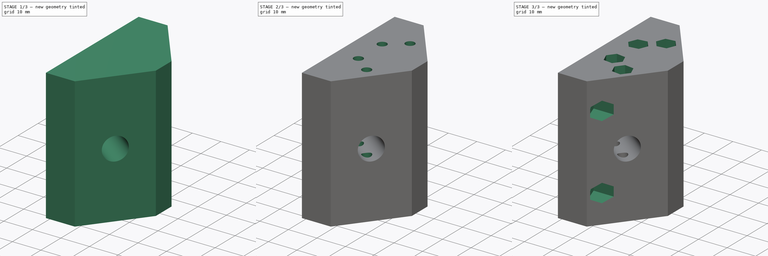
[diagram: build sequence overview — one tinted view per stage of 3, left to right]
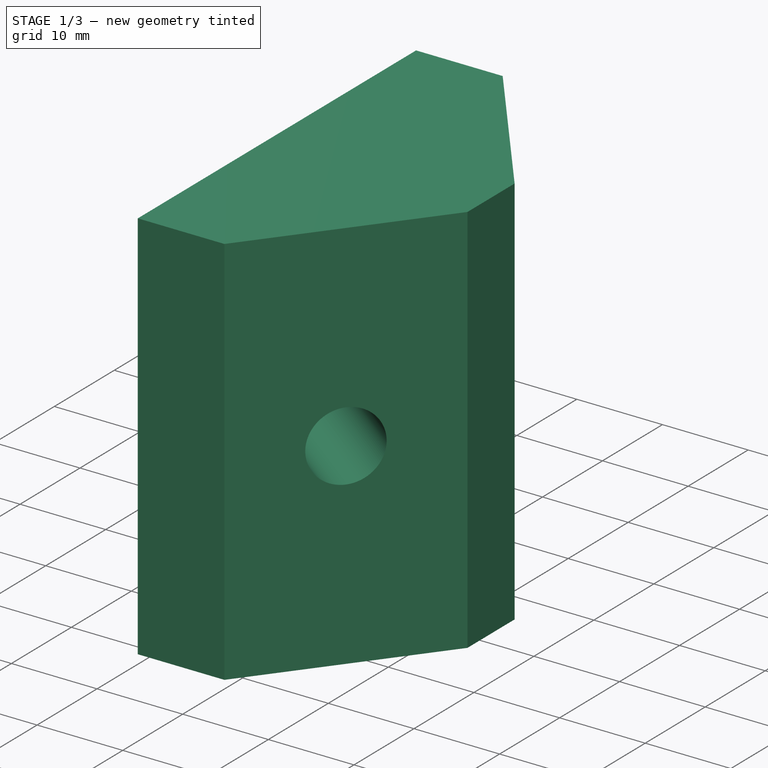
[diagram: stage 1 of 3 — iso view after this stage's code; geometry added in this stage tinted green]
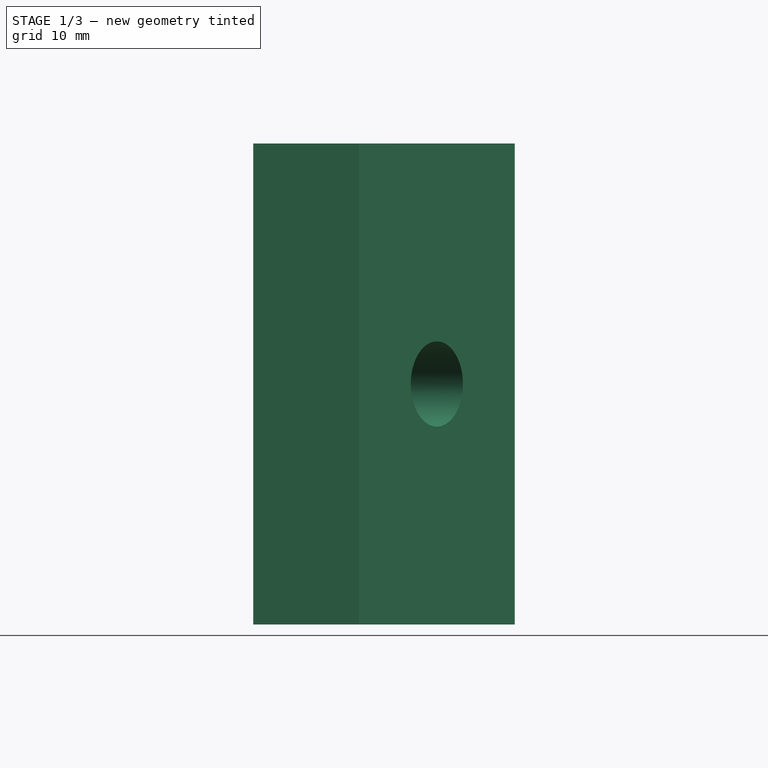
[diagram: stage 1 of 3 — front view after this stage's code; geometry added in this stage tinted green]
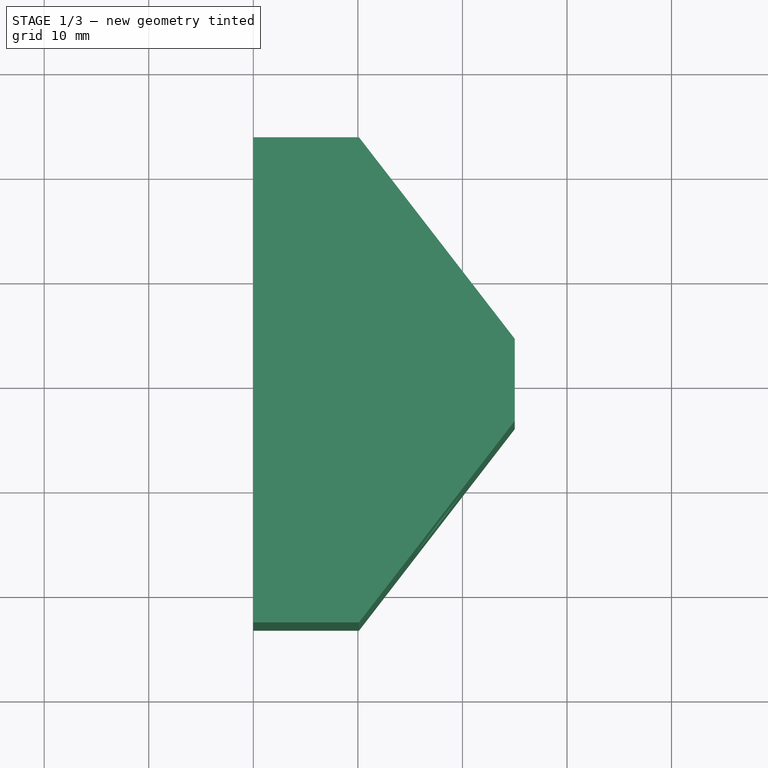
[diagram: stage 1 of 3 — top view after this stage's code; geometry added in this stage tinted green]
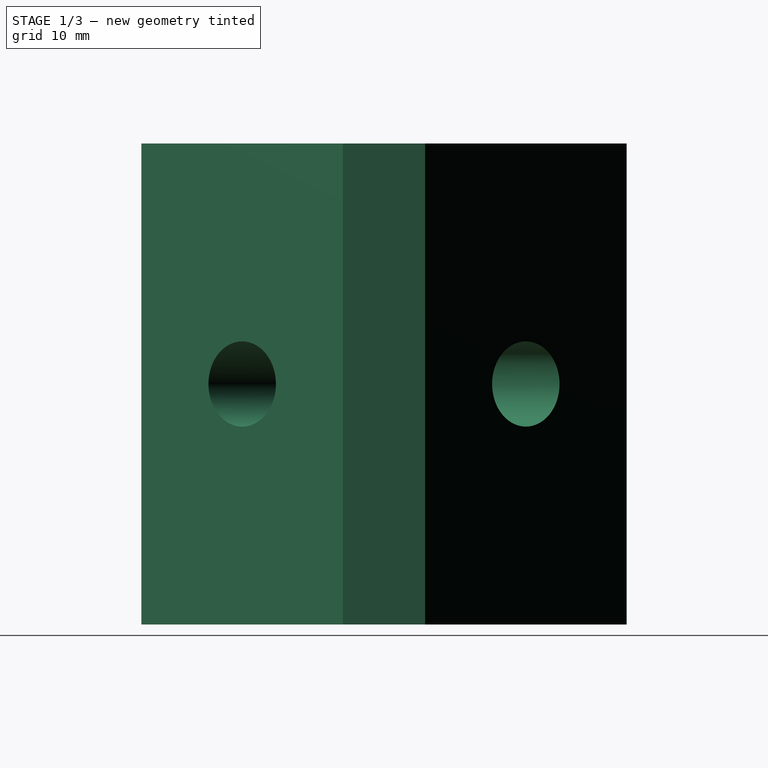
[diagram: stage 1 of 3 — right view after this stage's code; geometry added in this stage tinted green]
FCSTD DOCUMENT  (FreeCAD 0.20R29603 (Git))
Label: haste-M8-ponta-inferior
License: All rights reserved
LicenseURL: http://en.wikipedia.org/wiki/All_rights_reserved
objects: Sketcher::SketchObject×8, PartDesign::Pocket×7, PartDesign::Pad×1, PartDesign::Body×1
note: 25 computed .brp shape members not serialized (recipe doc carries the construction recipe); baked Part::Feature solids carry a one-line shape summary decoded from their .brp

FEATURE [Sketcher::SketchObject] Sketch
  FullyConstrained = true
  MapMode = 5
  Support = -> [XY_Plane]
  sketch-geometry (21):
    g0: LineSegment StartX=0 StartY=100 StartZ=0 EndX=115 EndY=100 EndZ=0
    g1: LineSegment StartX=115 StartY=100 StartZ=0 EndX=130 EndY=100 EndZ=0
    g2: LineSegment StartX=130 StartY=100 StartZ=0 EndX=130 EndY=85 EndZ=0
    g3: LineSegment StartX=-5.2 StartY=16 StartZ=0 EndX=20 EndY=16 EndZ=0
    g4: LineSegment StartX=20 StartY=16 StartZ=0 EndX=20 EndY=-16 EndZ=0
    g5: LineSegment StartX=20 StartY=-16 StartZ=0 EndX=-5.2 EndY=-16 EndZ=0
    g6: LineSegment StartX=-5.2 StartY=-16 StartZ=0 EndX=-5.2 EndY=16 EndZ=0
    g7: LineSegment StartX=20 StartY=16 StartZ=0 EndX=-5.2 EndY=-16 EndZ=0
    g8: LineSegment StartX=-5.2 StartY=16 StartZ=0 EndX=20 EndY=-16 EndZ=0
    g9: GeomPoint X=7.4 Y=0 Z=0
    g10: GeomPoint X=20 Y=100 Z=0
    g11: LineSegment StartX=130 StartY=85 StartZ=0 EndX=20 EndY=0 EndZ=0
    g12: LineSegment StartX=20 StartY=0 StartZ=0 EndX=20 EndY=23.2 EndZ=0
    g13: LineSegment StartX=20 StartY=0 StartZ=0 EndX=20 EndY=-23.2 EndZ=0
    g14: LineSegment StartX=20 StartY=23.2 StartZ=0 EndX=30.1097 EndY=23.2 EndZ=0
    g15: LineSegment StartX=30.1097 StartY=23.2 StartZ=0 EndX=45 EndY=3.93026 EndZ=0
    g16: LineSegment StartX=45 StartY=3.93026 StartZ=0 EndX=45 EndY=-3.93026 EndZ=0
    g17: LineSegment StartX=45 StartY=-3.93026 StartZ=0 EndX=30.1097 EndY=-23.2 EndZ=0
    g18: LineSegment StartX=30.1097 StartY=-23.2 StartZ=0 EndX=20 EndY=-23.2 EndZ=0
    g19: LineSegment StartX=30.1097 StartY=23.2 StartZ=0 EndX=37.5549 EndY=13.5651 EndZ=0
    g20: LineSegment StartX=45 StartY=3.93026 StartZ=0 EndX=37.5549 EndY=13.5651 EndZ=0
  constraints (60):
    c: PointOnObject(g0,g-2)
    c: Horizontal(g0)
    c: DistanceX(g0,g0) = 115
    c: Coincident(g1,g0)
    c: Horizontal(g1)
    c: Coincident(g2,g1)
    c: Vertical(g2)
    c: Equal(g2,g1)
    c: DistanceY(g2,g2) = 15
    c: Coincident(g3,g4)
    c: Coincident(g4,g5)
    c: Coincident(g5,g6)
    c: Coincident(g6,g3)
    c: Horizontal(g3)
    c: Horizontal(g5)
    c: Vertical(g4)
    c: Vertical(g6)
    c: Coincident(g7,g3)
    c: Coincident(g7,g5)
    c: Coincident(g8,g3)
    c: PointOnObject(g9,g7)
    c: PointOnObject(g9,g8)
    c: PointOnObject(g9,g-1)
    c: DistanceY(g6,g6) = 32
    c: DistanceX(g3,g3) = 25.2
    c: Coincident(g8,g4)
    c: DistanceY(g-1,g0) = 100
    c: PointOnObject(g10,g0)
    c: DistanceX(g0,g10) = 20
    c: Vertical(g10,g3)
    c: Coincident(g11,g2)
    c: PointOnObject(g11,g-1)
    c: PointOnObject(g11,g4)
    c: Distance(g11) = 139.014
    c: Angle(g11,g-1) = 2.4837
    c: Horizontal(g14)
    c: Vertical(g16)
    c: Horizontal(g18)
    c: Coincident(g18,g13)
    c: Coincident(g12,g14)
    c: Coincident(g13,g12)
    c: Coincident(g13,g11)
    c: Equal(g12,g13)
    c: Coincident(g14,g15)
    c: Equal(g17,g15)
    c: Equal(g18,g14)
    c: Vertical(g13)
    c: Vertical(g12)
    c: Coincident(g18,g17)
    c: Coincident(g15,g16)
    c: Coincident(g16,g17)
    c: DistanceY(g3,g12) = 7.2
    c: DistanceX(g13,g16) = 25
    c: Angle(g11,g15) = 1.5708
    c: Coincident(g19,g14)
    c: PointOnObject(g19,g11)
    c: Coincident(g20,g15)
    c: Coincident(g20,g19)
    c: Equal(g19,g20)
    c: PointOnObject(g19,g15)
FEATURE [PartDesign::Pad] Pad
  Direction = (0,0,1)
  Length = 46
  Length2 = 10
  Profile = -> Sketch
  ReferenceAxis = -> Sketch [N_Axis]
  Type = 0
FEATURE [Sketcher::SketchObject] Sketch001
  ExternalGeometry = -> [Pad]
  FullyConstrained = true
  MapMode = 5
  Placement = pos=(30.0775,-23.2417,0) rot=(0.821373,0.403327,0.403327;1.76632rad)
  Support = -> [Pad]
  sketch-geometry (3):
    g0: LineSegment StartX=0.0527154 StartY=46 StartZ=0 EndX=24.4052 EndY=0 EndZ=0
    g1: LineSegment StartX=0.0527154 StartY=0 StartZ=0 EndX=24.4052 EndY=46 EndZ=0
    g2: Circle CenterX=12.229 CenterY=23 CenterZ=0 NormalX=0 NormalY=0 NormalZ=1 AngleXU=0 Radius=4.075
  constraints (7):
    c: Coincident(g0,g-4)
    c: Coincident(g0,g-3)
    c: Coincident(g1,g-4)
    c: Coincident(g1,g-3)
    c: Tangent(g2,g0) = -1.5708
    c: PointOnObject(g2,g1)
    c: Diameter(g2) = 8.15
FEATURE [PartDesign::Pocket] Pocket
  BaseFeature = -> Pad
  Direction = (-0.791285,0.611448,0)
  Length = 5
  Length2 = 5
  Profile = -> Sketch001
  ReferenceAxis = -> Sketch001 [N_Axis]
  Type = 1
FEATURE [Sketcher::SketchObject] Sketch002
  ExternalGeometry = -> [Pocket]
  FullyConstrained = true
  MapMode = 5
  Placement = pos=(30.0775,23.2417,0) rot=(0.328008,0.667986,0.667986;2.50769rad)
  Support = -> [Pocket]
  sketch-geometry (3):
    g0: LineSegment StartX=-24.4052 StartY=46 StartZ=0 EndX=-0.0527154 EndY=0 EndZ=0
    g1: LineSegment StartX=-0.0527154 StartY=46 StartZ=0 EndX=-24.4052 EndY=0 EndZ=0
    g2: Circle CenterX=-12.229 CenterY=23 CenterZ=0 NormalX=0 NormalY=0 NormalZ=1 AngleXU=0 Radius=4.075
  constraints (8):
    c: Coincident(g0,g-3)
    c: PointOnObject(g0,g-1)
    c: Coincident(g1,g-4)
    c: Coincident(g1,g-3)
    c: PointOnObject(g0,g-4)
    c: PointOnObject(g2,g1)
    c: PointOnObject(g2,g0)
    c: Diameter(g2) = 8.15
FEATURE [PartDesign::Pocket] Pocket001
  BaseFeature = -> Pocket
  Direction = (-0.791285,-0.611448,-1e-16)
  Length = 0
  Length2 = 5
  Profile = -> Sketch002
  ReferenceAxis = -> Sketch002 [N_Axis]
  Type = 1
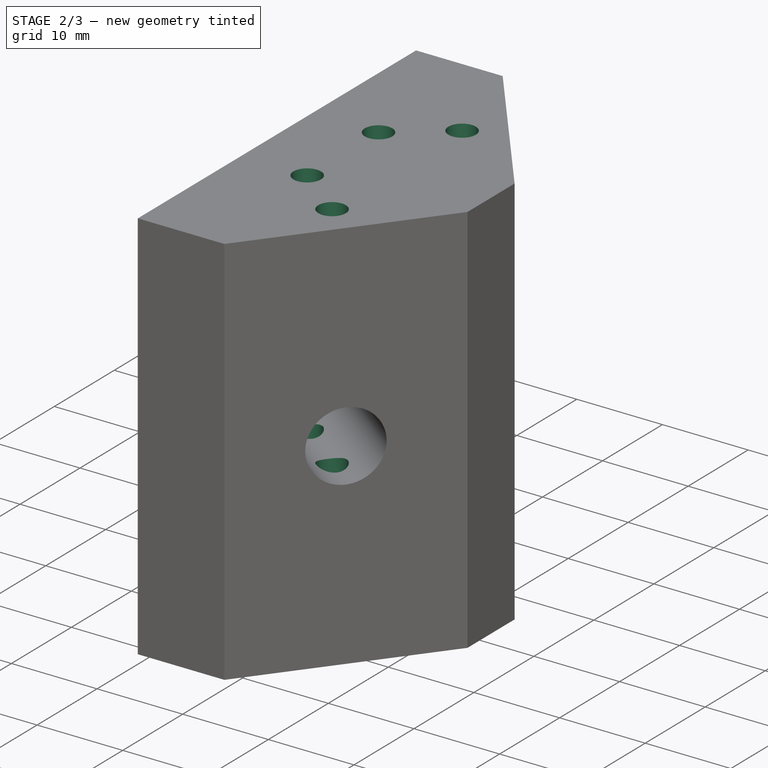
[diagram: stage 2 of 3 — iso view after this stage's code; geometry added in this stage tinted green]
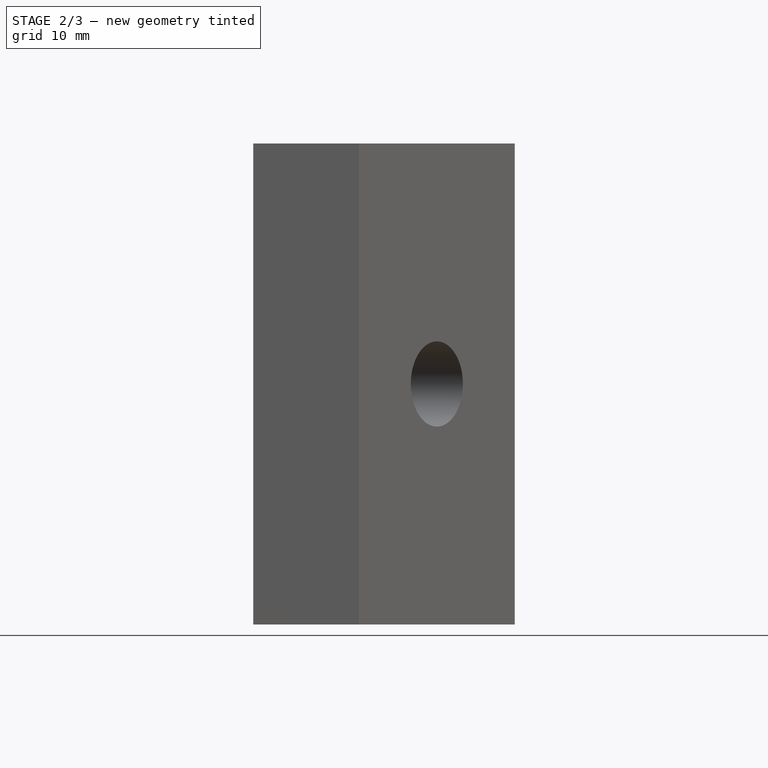
[diagram: stage 2 of 3 — front view after this stage's code; geometry added in this stage tinted green]
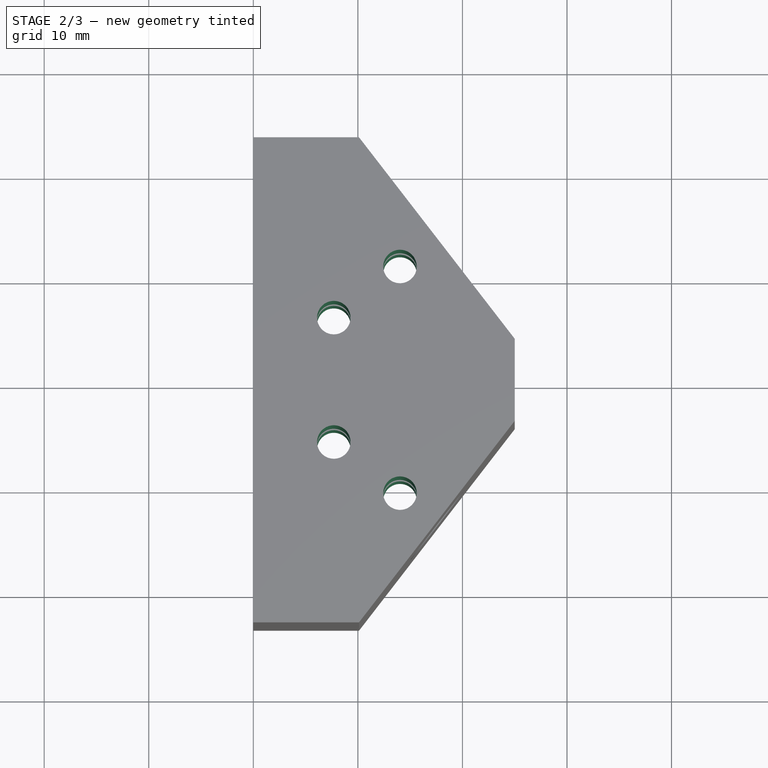
[diagram: stage 2 of 3 — top view after this stage's code; geometry added in this stage tinted green]
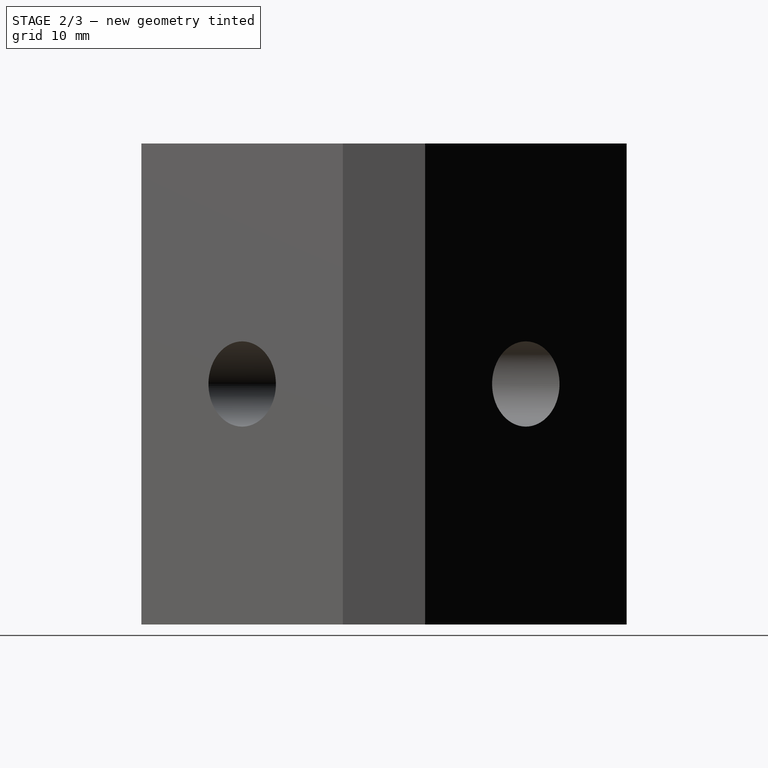
[diagram: stage 2 of 3 — right view after this stage's code; geometry added in this stage tinted green]
FEATURE [Sketcher::SketchObject] Sketch003
  ExternalGeometry = -> [Pocket001]
  FullyConstrained = true
  MapMode = 5
  Placement = pos=(0,0,46) rot=(0,0,1;0rad)
  Support = -> [Pocket001]
  sketch-geometry (20):
    g0: LineSegment StartX=35.0632 StartY=-16.7896 StartZ=0 EndX=20 EndY=-5.14985 EndZ=0
    g1: LineSegment StartX=40.0465 StartY=10.3406 StartZ=0 EndX=26.6645 EndY=-1.8e-15 EndZ=0
    g2: LineSegment StartX=26.6645 StartY=-1.8e-15 StartZ=0 EndX=21.6812 EndY=-6.44897 EndZ=0
    g3: LineSegment StartX=26.6645 StartY=-1.8e-15 StartZ=0 EndX=21.6812 EndY=6.44897 EndZ=0
    g4: LineSegment StartX=21.6812 StartY=6.44897 StartZ=0 EndX=24.1729 EndY=3.22449 EndZ=0
    g5: LineSegment StartX=24.1729 StartY=3.22449 StartZ=0 EndX=26.6645 EndY=-1.8e-15 EndZ=0
    g6: LineSegment StartX=26.6645 StartY=-1.8e-15 StartZ=0 EndX=24.1729 EndY=-3.22449 EndZ=0
    g7: LineSegment StartX=24.1729 StartY=-3.22449 StartZ=0 EndX=21.6812 EndY=-6.44897 EndZ=0
    g8: LineSegment StartX=35.0632 StartY=16.7896 StartZ=0 EndX=37.5549 EndY=13.5651 EndZ=0
    g9: LineSegment StartX=40.0465 StartY=10.3406 StartZ=0 EndX=37.5549 EndY=13.5651 EndZ=0
    g10: LineSegment StartX=40.0465 StartY=-10.3406 StartZ=0 EndX=37.5549 EndY=-13.5651 EndZ=0
    g11: LineSegment StartX=35.0632 StartY=-16.7896 StartZ=0 EndX=37.5549 EndY=-13.5651 EndZ=0
    g12: LineSegment StartX=24.1729 StartY=3.22449 StartZ=0 EndX=37.5549 EndY=13.5651 EndZ=0
    g13: LineSegment StartX=37.5549 StartY=-13.5651 StartZ=0 EndX=24.1729 EndY=-3.22449 EndZ=0
    g14: Circle CenterX=34.029 CenterY=10.8406 CenterZ=0 NormalX=0 NormalY=0 NormalZ=1 AngleXU=0 Radius=1.6
    g15: Circle CenterX=27.6987 CenterY=5.94902 CenterZ=0 NormalX=0 NormalY=0 NormalZ=1 AngleXU=0 Radius=1.6
    g16: Circle CenterX=27.6987 CenterY=-5.94902 CenterZ=0 NormalX=0 NormalY=0 NormalZ=1 AngleXU=0 Radius=1.6
    g17: Circle CenterX=34.029 CenterY=-10.8406 CenterZ=0 NormalX=0 NormalY=0 NormalZ=1 AngleXU=0 Radius=1.6
    g18: LineSegment StartX=24.1729 StartY=3.22449 StartZ=0 EndX=27.6987 EndY=5.94902 EndZ=0
    g19: LineSegment StartX=34.029 StartY=10.8406 StartZ=0 EndX=37.5549 EndY=13.5651 EndZ=0
  constraints (52):
    c: Coincident(g0,g-5)
    c: Coincident(g0,g-8)
    c: Coincident(g1,g-3)
    c: Coincident(g1,g-7)
    c: DistanceY(g-8,g-8) = 10.2997
    c: Distance(g-5) = 8.15
    c: Coincident(g2,g1)
    c: PointOnObject(g2,g0)
    c: Coincident(g3,g1)
    c: PointOnObject(g3,g-4)
    c: Angle(g2,g-6) = 1.5708
    c: Angle(g1,g3) = 1.5708
    c: Coincident(g4,g3)
    c: Coincident(g5,g4)
    c: Coincident(g5,g1)
    c: Coincident(g6,g1)
    c: Coincident(g7,g6)
    c: Coincident(g7,g2)
    c: Coincident(g8,g-4)
    c: Coincident(g9,g1)
    c: Coincident(g9,g8)
    c: Coincident(g10,g-6)
    c: Coincident(g11,g0)
    c: Coincident(g11,g10)
    c: Equal(g10,g11)
    c: Equal(g11,g7)
    c: Equal(g7,g6)
    c: Equal(g6,g5)
    c: Equal(g5,g4)
    c: Equal(g4,g8)
    c: Equal(g8,g9)
    c: PointOnObject(g10,g-5)
    c: Coincident(g12,g4)
    c: Coincident(g12,g8)
    c: Coincident(g13,g10)
    c: Coincident(g13,g6)
    c: PointOnObject(g14,g12)
    c: PointOnObject(g15,g12)
    c: PointOnObject(g16,g13)
    c: PointOnObject(g17,g13)
    c: Equal(g17,g16)
    c: Equal(g16,g15)
    c: Equal(g15,g14)
    c: Vertical(g15,g16)
    c: Vertical(g14,g17)
    c: Radius(g14) = 1.6
    c: Coincident(g18,g4)
    c: Coincident(g19,g14)
    c: Equal(g18,g19)
    c: Coincident(g19,g8)
    c: Coincident(g18,g15)
    c: Distance(g14,g15) = 8
FEATURE [PartDesign::Pocket] Pocket002
  BaseFeature = -> Pocket001
  Direction = (0,0,-1)
  Length = 5
  Length2 = 5
  Profile = -> Sketch003
  ReferenceAxis = -> Sketch003 [N_Axis]
  Type = 1
FEATURE [Sketcher::SketchObject] Sketch004
  ExternalGeometry = -> [Pocket002]
  FullyConstrained = true
  MapMode = 5
  Placement = pos=(0,0,0) rot=(1,0,0;3.14159rad)
  Support = -> [Pocket002]
  sketch-geometry (4):
    g0: Circle CenterX=34.029 CenterY=10.8406 CenterZ=0 NormalX=0 NormalY=0 NormalZ=1 AngleXU=0 Radius=3
    g1: Circle CenterX=27.6987 CenterY=5.94902 CenterZ=0 NormalX=0 NormalY=0 NormalZ=1 AngleXU=0 Radius=3
    g2: Circle CenterX=27.6987 CenterY=-5.94902 CenterZ=0 NormalX=0 NormalY=0 NormalZ=1 AngleXU=0 Radius=3
    g3: Circle CenterX=34.029 CenterY=-10.8406 CenterZ=0 NormalX=0 NormalY=0 NormalZ=1 AngleXU=0 Radius=3
  constraints (8):
    c: Coincident(g0,g-3)
    c: Coincident(g1,g-4)
    c: Coincident(g2,g-5)
    c: Coincident(g3,g-6)
    c: Equal(g3,g2)
    c: Equal(g2,g1)
    c: Equal(g1,g0)
    c: Radius(g3) = 3
FEATURE [PartDesign::Pocket] Pocket003
  BaseFeature = -> Pocket002
  Direction = (0,0,1)
  Length = 4.5
  Length2 = 5
  Profile = -> Sketch004
  ReferenceAxis = -> Sketch004 [N_Axis]
  Type = 0
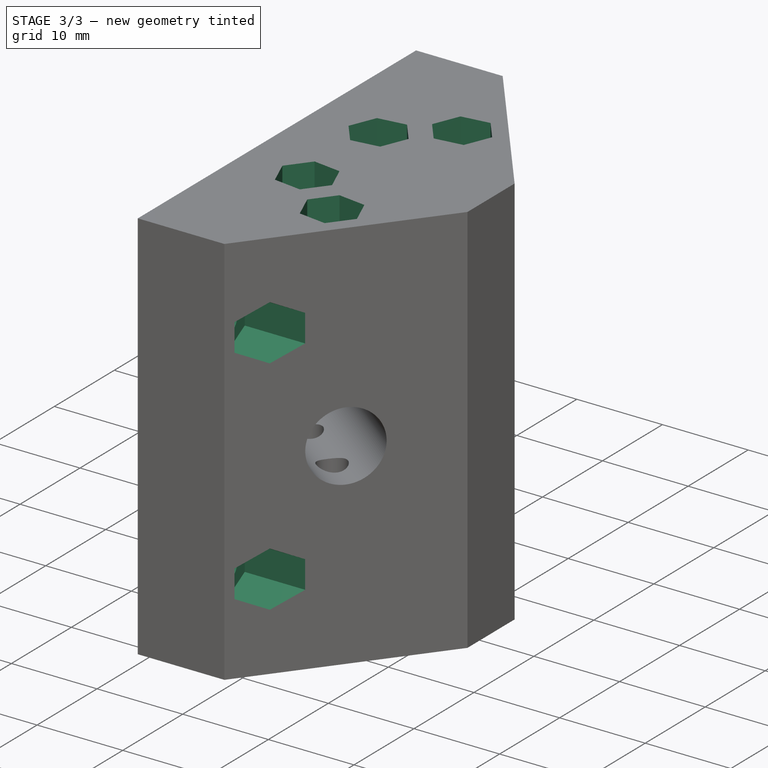
[diagram: stage 3 of 3 — iso view after this stage's code; geometry added in this stage tinted green]
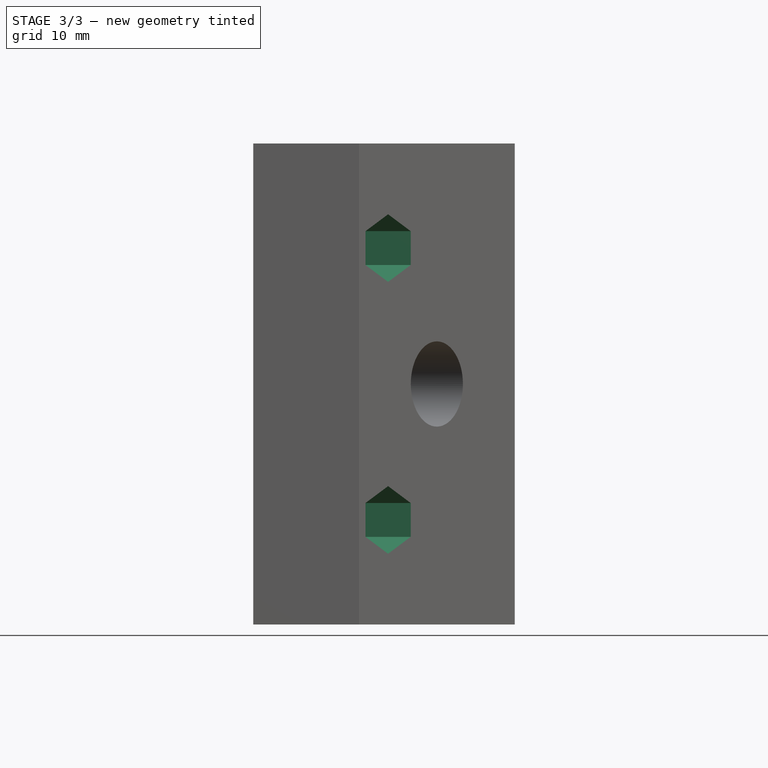
[diagram: stage 3 of 3 — front view after this stage's code; geometry added in this stage tinted green]
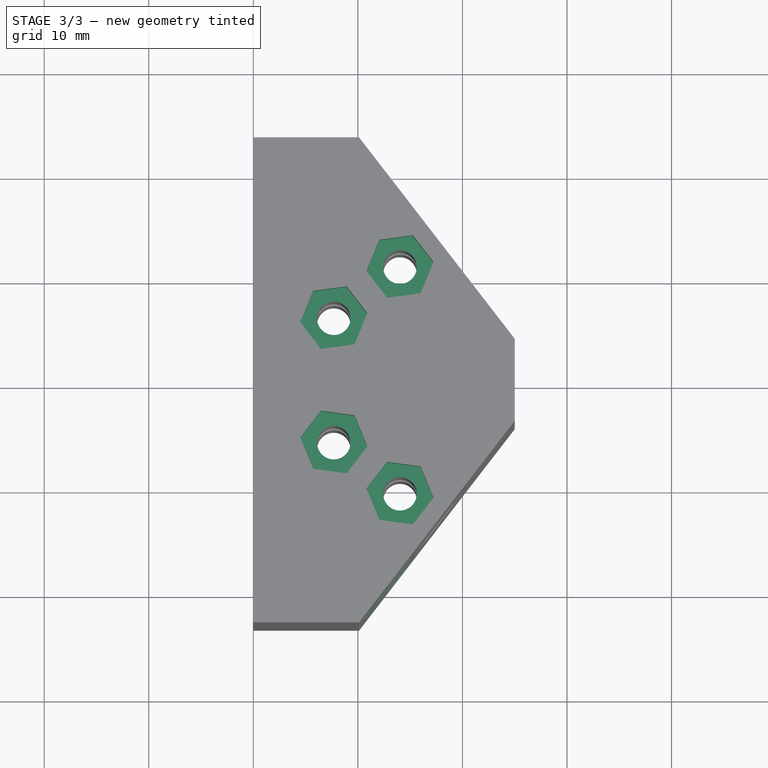
[diagram: stage 3 of 3 — top view after this stage's code; geometry added in this stage tinted green]
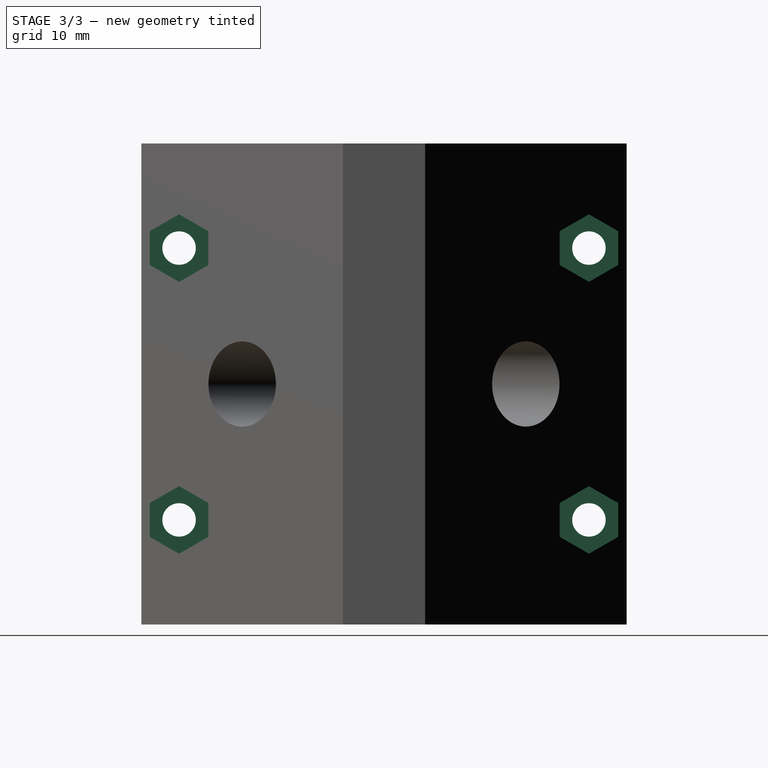
[diagram: stage 3 of 3 — right view after this stage's code; geometry added in this stage tinted green]
FEATURE [Sketcher::SketchObject] Sketch005
  ExternalGeometry = -> [Pocket003]
  FullyConstrained = true
  MapMode = 5
  Placement = pos=(0,0,46) rot=(0,0,1;0rad)
  Support = -> [Pocket003]
  sketch-geometry (28):
    g0: LineSegment StartX=32.8019 StartY=7.84937 StartZ=0 EndX=36.0059 EndY=8.28225 EndZ=0
    g1: LineSegment StartX=36.0059 StartY=8.28225 StartZ=0 EndX=37.2331 EndY=11.2735 EndZ=0
    g2: LineSegment StartX=37.2331 StartY=11.2735 StartZ=0 EndX=35.2562 EndY=13.8318 EndZ=0
    g3: LineSegment StartX=35.2562 StartY=13.8318 StartZ=0 EndX=32.0521 EndY=13.3989 EndZ=0
    g4: LineSegment StartX=32.0521 StartY=13.3989 StartZ=0 EndX=30.825 EndY=10.4077 EndZ=0
    g5: LineSegment StartX=30.825 StartY=10.4077 StartZ=0 EndX=32.8019 EndY=7.84937 EndZ=0
    g6: Circle CenterX=34.029 CenterY=10.8406 CenterZ=0 NormalX=0 NormalY=0 NormalZ=1 AngleXU=0 Radius=3.23316
    g7: LineSegment StartX=26.4716 StartY=2.95779 StartZ=0 EndX=29.6756 EndY=3.39067 EndZ=0
    g8: LineSegment StartX=29.6756 StartY=3.39067 StartZ=0 EndX=30.9028 EndY=6.38189 EndZ=0
    g9: LineSegment StartX=30.9028 StartY=6.38189 StartZ=0 EndX=28.9259 EndY=8.94025 EndZ=0
    g10: LineSegment StartX=28.9259 StartY=8.94025 StartZ=0 EndX=25.7218 EndY=8.50737 EndZ=0
    g11: LineSegment StartX=25.7218 StartY=8.50737 StartZ=0 EndX=24.4947 EndY=5.51614 EndZ=0
    g12: LineSegment StartX=24.4947 StartY=5.51614 StartZ=0 EndX=26.4716 EndY=2.95779 EndZ=0
    g13: Circle CenterX=27.6987 CenterY=5.94902 CenterZ=0 NormalX=0 NormalY=0 NormalZ=1 AngleXU=0 Radius=3.23316
    g14: LineSegment StartX=29.6756 StartY=-3.39067 StartZ=0 EndX=26.4716 EndY=-2.95779 EndZ=0
    g15: LineSegment StartX=26.4716 StartY=-2.95779 StartZ=0 EndX=24.4947 EndY=-5.51614 EndZ=0
    g16: LineSegment StartX=24.4947 StartY=-5.51614 StartZ=0 EndX=25.7218 EndY=-8.50737 EndZ=0
    g17: LineSegment StartX=25.7218 StartY=-8.50737 StartZ=0 EndX=28.9259 EndY=-8.94025 EndZ=0
    g18: LineSegment StartX=28.9259 StartY=-8.94025 StartZ=0 EndX=30.9028 EndY=-6.38189 EndZ=0
    g19: LineSegment StartX=30.9028 StartY=-6.38189 StartZ=0 EndX=29.6756 EndY=-3.39067 EndZ=0
    g20: Circle CenterX=27.6987 CenterY=-5.94902 CenterZ=0 NormalX=0 NormalY=0 NormalZ=1 AngleXU=0 Radius=3.23316
    g21: LineSegment StartX=36.0059 StartY=-8.28225 StartZ=0 EndX=32.8019 EndY=-7.84937 EndZ=0
    g22: LineSegment StartX=32.8019 StartY=-7.84937 StartZ=0 EndX=30.825 EndY=-10.4077 EndZ=0
    g23: LineSegment StartX=30.825 StartY=-10.4077 StartZ=0 EndX=32.0521 EndY=-13.3989 EndZ=0
    g24: LineSegment StartX=32.0521 StartY=-13.3989 StartZ=0 EndX=35.2562 EndY=-13.8318 EndZ=0
    g25: LineSegment StartX=35.2562 StartY=-13.8318 StartZ=0 EndX=37.2331 EndY=-11.2735 EndZ=0
    g26: LineSegment StartX=37.2331 StartY=-11.2735 StartZ=0 EndX=36.0059 EndY=-8.28225 EndZ=0
    g27: Circle CenterX=34.029 CenterY=-10.8406 CenterZ=0 NormalX=0 NormalY=0 NormalZ=1 AngleXU=0 Radius=3.23316
  constraints (64):
    c: Coincident(g0,g1)
    c: Coincident(g1,g2)
    c: Coincident(g2,g3)
    c: Coincident(g3,g4)
    c: Coincident(g4,g5)
    c: Coincident(g5,g0)
    c: Equal(g0, g1-g5) x5
    c: PointOnObject(g0,g6)
    c: PointOnObject(g1,g6)
    c: PointOnObject(g2,g6)
    c: PointOnObject(g3,g6)
    c: PointOnObject(g4,g6)
    c: PointOnObject(g5,g6)
    c: Coincident(g6,g-3)
    c: Coincident(g7,g8)
    c: Coincident(g8,g9)
    c: Coincident(g9,g10)
    c: Coincident(g10,g11)
    c: Coincident(g11,g12)
    c: Coincident(g12,g7)
    c: Equal(g7, g8-g12) x5
    c: PointOnObject(g7,g13)
    c: PointOnObject(g8,g13)
    c: PointOnObject(g9,g13)
    c: PointOnObject(g10,g13)
    c: PointOnObject(g11,g13)
    c: PointOnObject(g12,g13)
    c: Coincident(g13,g-4)
    c: Coincident(g14,g15)
    c: Coincident(g15,g16)
    c: Coincident(g16,g17)
    c: Coincident(g17,g18)
    c: Coincident(g18,g19)
    c: Coincident(g19,g14)
    c: Equal(g14, g15-g19) x5
    c: PointOnObject(g14,g20)
    c: PointOnObject(g15,g20)
    c: PointOnObject(g16,g20)
    c: PointOnObject(g17,g20)
    c: PointOnObject(g18,g20)
    c: PointOnObject(g19,g20)
    c: Coincident(g20,g-5)
    c: Coincident(g21,g22)
    c: Coincident(g22,g23)
    c: Coincident(g23,g24)
    c: Coincident(g24,g25)
    c: Coincident(g25,g26)
    c: Coincident(g26,g21)
    c: Equal(g21, g22-g26) x5
    c: PointOnObject(g21,g27)
    c: PointOnObject(g22,g27)
    c: PointOnObject(g23,g27)
    c: PointOnObject(g24,g27)
    c: PointOnObject(g25,g27)
    c: PointOnObject(g26,g27)
    c: Coincident(g27,g-6)
    c: Parallel(g2,g9)
    c: Parallel(g9,g-7)
    c: Parallel(g18,g22)
    c: Parallel(g22,g-8)
    c: Equal(g20,g27)
    c: Equal(g27,g13)
    c: Equal(g13,g6)
    c: Distance(g9,g11) = 5.6
FEATURE [PartDesign::Pocket] Pocket004
  BaseFeature = -> Pocket003
  Direction = (0,0,-1)
  Length = 3.5
  Length2 = 5
  Profile = -> Sketch005
  ReferenceAxis = -> Sketch005 [N_Axis]
  Type = 0
FEATURE [Sketcher::SketchObject] Sketch006
  ExternalGeometry = -> [Pocket004]
  FullyConstrained = false
  MapMode = 5
  Placement = pos=(20,0,0) rot=(0.57735,-0.57735,-0.57735;2.0944rad)
  Support = -> [Pocket004]
  sketch-geometry (13):
    g0: Circle CenterX=-19.6 CenterY=36 CenterZ=0 NormalX=0 NormalY=0 NormalZ=1 AngleXU=0 Radius=1.6
    g1: Circle CenterX=19.6 CenterY=36 CenterZ=0 NormalX=0 NormalY=0 NormalZ=1 AngleXU=0 Radius=1.6
    g2: Circle CenterX=19.6 CenterY=10 CenterZ=0 NormalX=0 NormalY=0 NormalZ=1 AngleXU=0 Radius=1.6
    g3: Circle CenterX=-19.6 CenterY=10 CenterZ=0 NormalX=0 NormalY=0 NormalZ=1 AngleXU=0 Radius=1.6
    g4: LineSegment StartX=23.2 StartY=46 StartZ=0 EndX=23.2 EndY=38.8 EndZ=0
    g5: LineSegment StartX=19.6 StartY=36 StartZ=0 EndX=-19.6 EndY=10 EndZ=0
    g6: LineSegment StartX=19.6 StartY=10 StartZ=0 EndX=-19.6 EndY=36 EndZ=0
    g7: LineSegment StartX=-23.2 StartY=0 StartZ=0 EndX=-16 EndY=0 EndZ=0
    g8: LineSegment StartX=-16 StartY=0 StartZ=0 EndX=-16 EndY=46 EndZ=0
    g9: LineSegment StartX=-16 StartY=46 StartZ=0 EndX=-23.2 EndY=46 EndZ=0
    g10: LineSegment StartX=-23.2 StartY=46 StartZ=0 EndX=-23.2 EndY=0 EndZ=0
    g11: LineSegment StartX=-23.2 StartY=0 StartZ=0 EndX=-19.6 EndY=0 EndZ=0
    g12: LineSegment StartX=-16 StartY=0 StartZ=0 EndX=-19.6 EndY=0 EndZ=0
  constraints (35):
    c: Vertical(g4)
    c: PointOnObject(g4,g-4)
    c: Radius(g1) = 1.6
    c: Equal(g1,g0)
    c: Equal(g0,g3)
    c: Equal(g3,g2)
    c: Horizontal(g0,g1)
    c: Horizontal(g3,g2)
    c: Vertical(g3,g0)
    c: Vertical(g2,g1)
    c: Coincident(g5,g1)
    c: Coincident(g5,g3)
    c: Coincident(g6,g2)
    c: Coincident(g6,g0)
    c: PointOnObject(g-3,g5)
    c: PointOnObject(g-3,g6)
    c: Coincident(g7,g8)
    c: Coincident(g8,g9)
    c: Coincident(g9,g10)
    c: Coincident(g10,g7)
    c: Horizontal(g7)
    c: Horizontal(g9)
    c: Vertical(g8)
    c: Vertical(g10)
    c: Coincident(g9,g-5)
    c: PointOnObject(g7,g-1)
    c: Coincident(g11,g7)
    c: Coincident(g12,g7)
    c: Coincident(g12,g11)
    c: Equal(g11,g12)
    c: PointOnObject(g11,g7)
    c: Vertical(g3,g11)
    c: DistanceY(g7,g3) = 10
    c: DistanceX(g9,g9) = 7.2
    c: DistanceY(g2,g1) = 26
FEATURE [PartDesign::Pocket] Pocket005
  BaseFeature = -> Pocket004
  Direction = (1,0,0)
  Length = 5
  Length2 = 5
  Profile = -> Sketch006
  ReferenceAxis = -> Sketch006 [N_Axis]
  Type = 1
FEATURE [Sketcher::SketchObject] Sketch008
  ExternalGeometry = -> [Pocket005]
  FullyConstrained = true
  MapMode = 5
  Placement = pos=(45,0,0) rot=(0.57735,0.57735,0.57735;2.0944rad)
  Support = -> [Pocket005]
  sketch-geometry (28):
    g0: LineSegment StartX=-16.8 StartY=34.3834 StartZ=0 EndX=-16.8 EndY=37.6166 EndZ=0
    g1: LineSegment StartX=-16.8 StartY=37.6166 StartZ=0 EndX=-19.6 EndY=39.2332 EndZ=0
    g2: LineSegment StartX=-19.6 StartY=39.2332 StartZ=0 EndX=-22.4 EndY=37.6166 EndZ=0
    g3: LineSegment StartX=-22.4 StartY=37.6166 StartZ=0 EndX=-22.4 EndY=34.3834 EndZ=0
    g4: LineSegment StartX=-22.4 StartY=34.3834 StartZ=0 EndX=-19.6 EndY=32.7668 EndZ=0
    g5: LineSegment StartX=-19.6 StartY=32.7668 StartZ=0 EndX=-16.8 EndY=34.3834 EndZ=0
    g6: Circle CenterX=-19.6 CenterY=36 CenterZ=0 NormalX=0 NormalY=0 NormalZ=1 AngleXU=0 Radius=3.23316
    g7: LineSegment StartX=16.8 StartY=34.3834 StartZ=0 EndX=19.6 EndY=32.7668 EndZ=0
    g8: LineSegment StartX=19.6 StartY=32.7668 StartZ=0 EndX=22.4 EndY=34.3834 EndZ=0
    g9: LineSegment StartX=22.4 StartY=34.3834 StartZ=0 EndX=22.4 EndY=37.6166 EndZ=0
    g10: LineSegment StartX=22.4 StartY=37.6166 StartZ=0 EndX=19.6 EndY=39.2332 EndZ=0
    g11: LineSegment StartX=19.6 StartY=39.2332 StartZ=0 EndX=16.8 EndY=37.6166 EndZ=0
    g12: LineSegment StartX=16.8 StartY=37.6166 StartZ=0 EndX=16.8 EndY=34.3834 EndZ=0
    g13: Circle CenterX=19.6 CenterY=36 CenterZ=0 NormalX=0 NormalY=0 NormalZ=1 AngleXU=0 Radius=3.23316
    g14: LineSegment StartX=-16.8 StartY=11.6166 StartZ=0 EndX=-19.6 EndY=13.2332 EndZ=0
    g15: LineSegment StartX=-19.6 StartY=13.2332 StartZ=0 EndX=-22.4 EndY=11.6166 EndZ=0
    g16: LineSegment StartX=-22.4 StartY=11.6166 StartZ=0 EndX=-22.4 EndY=8.38342 EndZ=0
    g17: LineSegment StartX=-22.4 StartY=8.38342 StartZ=0 EndX=-19.6 EndY=6.76684 EndZ=0
    g18: LineSegment StartX=-19.6 StartY=6.76684 StartZ=0 EndX=-16.8 EndY=8.38342 EndZ=0
    g19: LineSegment StartX=-16.8 StartY=8.38342 StartZ=0 EndX=-16.8 EndY=11.6166 EndZ=0
    g20: Circle CenterX=-19.6 CenterY=10 CenterZ=0 NormalX=0 NormalY=0 NormalZ=1 AngleXU=0 Radius=3.23316
    g21: LineSegment StartX=16.8 StartY=8.38342 StartZ=0 EndX=19.6 EndY=6.76684 EndZ=0
    g22: LineSegment StartX=19.6 StartY=6.76684 StartZ=0 EndX=22.4 EndY=8.38342 EndZ=0
    g23: LineSegment StartX=22.4 StartY=8.38342 StartZ=0 EndX=22.4 EndY=11.6166 EndZ=0
    g24: LineSegment StartX=22.4 StartY=11.6166 StartZ=0 EndX=19.6 EndY=13.2332 EndZ=0
    g25: LineSegment StartX=19.6 StartY=13.2332 StartZ=0 EndX=16.8 EndY=11.6166 EndZ=0
    g26: LineSegment StartX=16.8 StartY=11.6166 StartZ=0 EndX=16.8 EndY=8.38342 EndZ=0
    g27: Circle CenterX=19.6 CenterY=10 CenterZ=0 NormalX=0 NormalY=0 NormalZ=1 AngleXU=0 Radius=3.23316
  constraints (64):
    c: Coincident(g0,g1)
    c: Coincident(g1,g2)
    c: Coincident(g2,g3)
    c: Coincident(g3,g4)
    c: Coincident(g4,g5)
    c: Coincident(g5,g0)
    c: Equal(g0, g1-g5) x5
    c: PointOnObject(g0,g6)
    c: PointOnObject(g1,g6)
    c: PointOnObject(g2,g6)
    c: PointOnObject(g3,g6)
    c: PointOnObject(g4,g6)
    c: PointOnObject(g5,g6)
    c: Coincident(g6,g-4)
    c: Coincident(g7,g8)
    c: Coincident(g8,g9)
    c: Coincident(g9,g10)
    c: Coincident(g10,g11)
    c: Coincident(g11,g12)
    c: Coincident(g12,g7)
    c: Equal(g7, g8-g12) x5
    c: PointOnObject(g7,g13)
    c: PointOnObject(g8,g13)
    c: PointOnObject(g9,g13)
    c: PointOnObject(g10,g13)
    c: PointOnObject(g11,g13)
    c: PointOnObject(g12,g13)
    c: Coincident(g13,g-5)
    c: Coincident(g14,g15)
    c: Coincident(g15,g16)
    c: Coincident(g16,g17)
    c: Coincident(g17,g18)
    c: Coincident(g18,g19)
    c: Coincident(g19,g14)
    c: Equal(g14, g15-g19) x5
    c: PointOnObject(g14,g20)
    c: PointOnObject(g15,g20)
    c: PointOnObject(g16,g20)
    c: PointOnObject(g17,g20)
    c: PointOnObject(g18,g20)
    c: PointOnObject(g19,g20)
    c: Coincident(g20,g-3)
    c: Coincident(g21,g22)
    c: Coincident(g22,g23)
    c: Coincident(g23,g24)
    c: Coincident(g24,g25)
    c: Coincident(g25,g26)
    c: Coincident(g26,g21)
    c: Equal(g21, g22-g26) x5
    c: PointOnObject(g21,g27)
    c: PointOnObject(g22,g27)
    c: PointOnObject(g23,g27)
    c: PointOnObject(g24,g27)
    c: PointOnObject(g25,g27)
    c: PointOnObject(g26,g27)
    c: Coincident(g27,g-6)
    c: Equal(g27,g20)
    c: Equal(g20,g6)
    c: Equal(g6,g13)
    c: Vertical(g3)
    c: Vertical(g12)
    c: Vertical(g16)
    c: Vertical(g26)
    c: DistanceX(g15,g14) = 5.6
FEATURE [PartDesign::Pocket] Pocket006
  BaseFeature = -> Pocket005
  Direction = (-1,0,0)
  Length = 17
  Length2 = 5
  Profile = -> Sketch008
  ReferenceAxis = -> Sketch008 [N_Axis]
  Type = 0
FEATURE [PartDesign::Body] Body
  Group = -> [Sketch,Pad,Sketch001,Pocket,Sketch002,Pocket001,Sketch003,Pocket002,Sketch004,Pocket003,Sketch005,Pocket004,Sketch006,Pocket005,Sketch008,Pocket006]
  Origin = -> Origin
  Tip = -> Pocket006
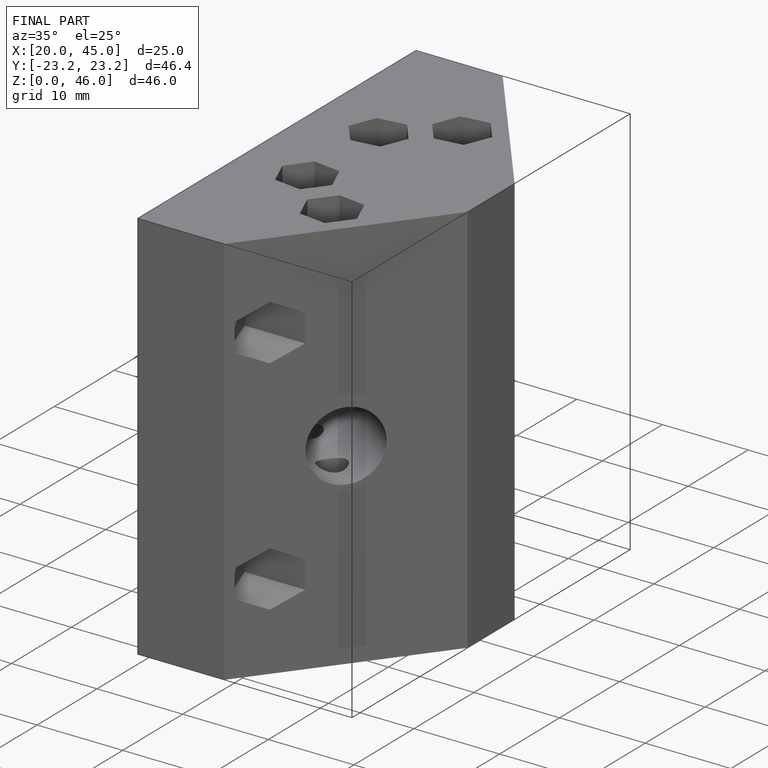
[diagram: finished part — iso view with bounding-box wireframe]
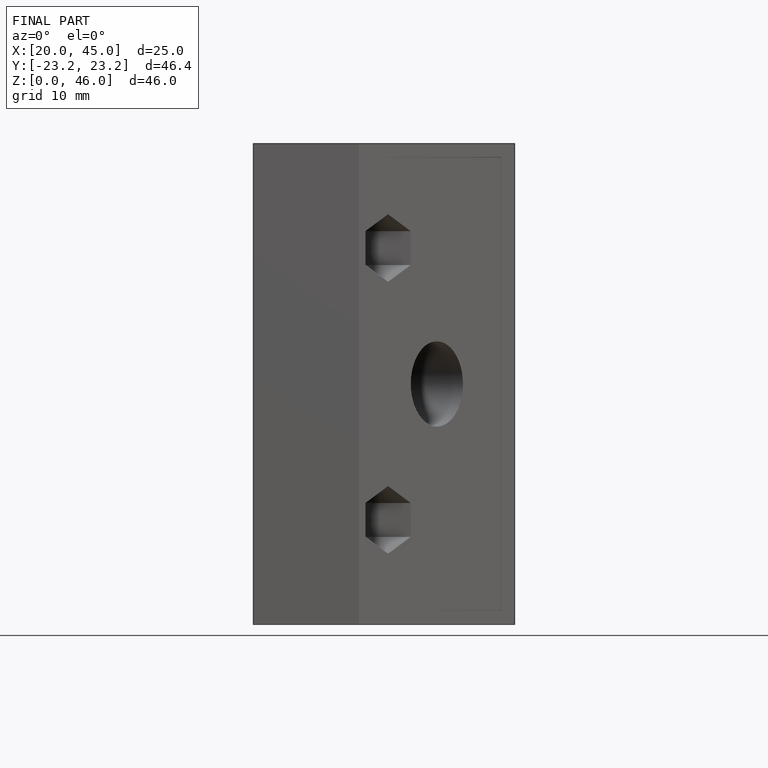
[diagram: finished part — front view with bounding-box wireframe]
